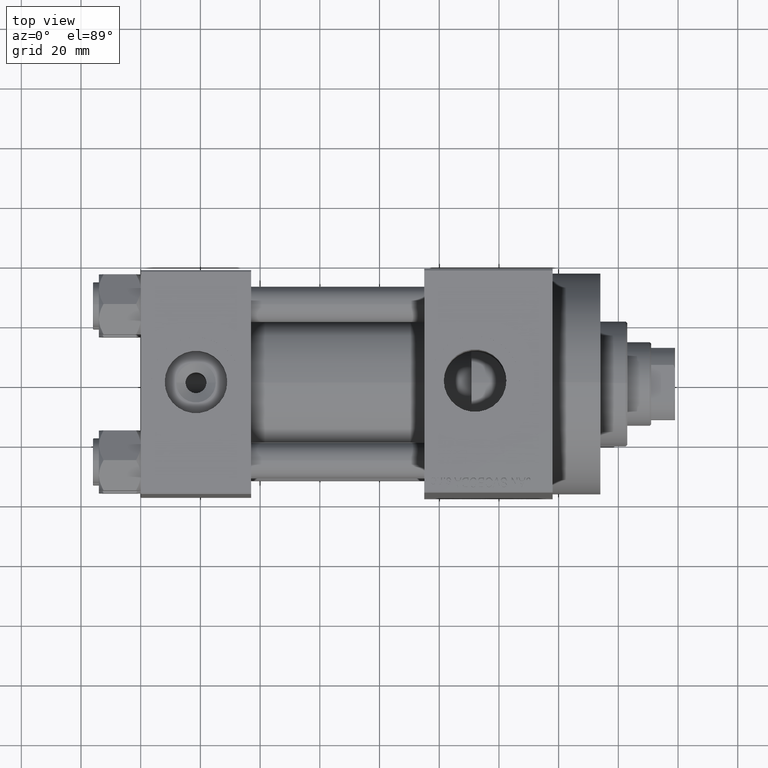
[diagram: clean part render]
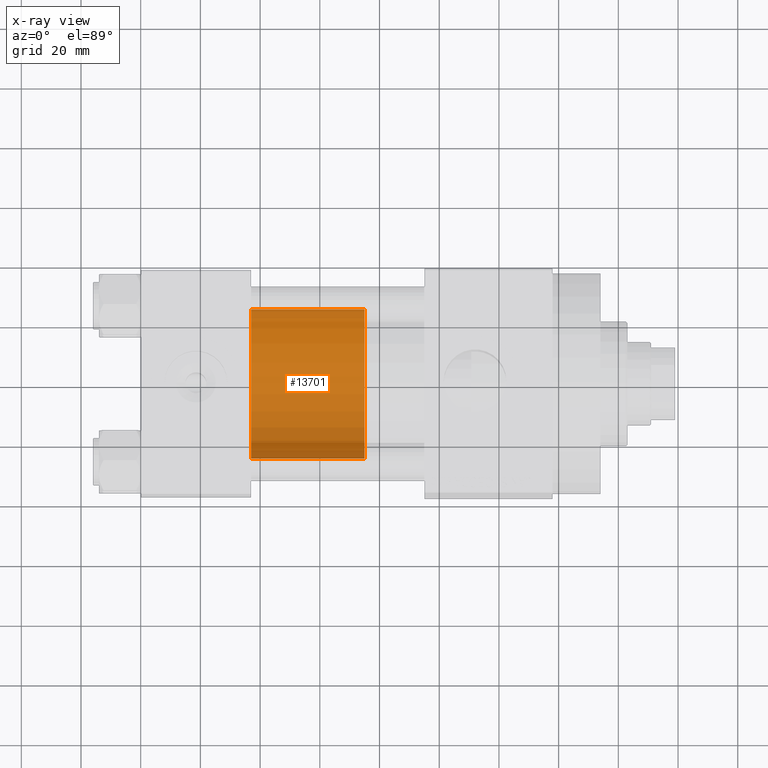
[diagram: x-ray — body ghosted, one internal face saturated and labeled with its STEP entity id]
A machine part, top view, then the same camera in x-ray: the body is ghosted and one INTERNAL B-rep face — a face not visible from any outside direction — is saturated and labeled: STEP entity #13701.
In plain terms, the highlighted cylindrical surface (partial cylindrical patch) has radius 25 mm, axis along (-1, 0, 0).
Its self-contained STEP definition (entity closure, byte-faithful):
#1112 = CARTESIAN_POINT ( 'NONE',  ( 0.000000000000000000, 0.000000000000000000, 38.00000000000000000 ) ) ;
#1924 = VERTEX_POINT ( 'NONE', #8918 ) ;
#5635 = DIRECTION ( 'NONE',  ( -0.000000000000000000, -0.000000000000000000, -1.000000000000000000 ) ) ;
#7929 = ORIENTED_EDGE ( 'NONE', *, *, #34699, .T. ) ;
#8110 = EDGE_CURVE ( 'NONE', #15899, #45849, #38335, .T. ) ;
#8918 = CARTESIAN_POINT ( 'NONE',  ( 25.00000000000000000, 3.061616997868383043E-15, 38.00000000000000000 ) ) ;
#9008 = AXIS2_PLACEMENT_3D ( 'NONE', #43640, #14538, #21465 ) ;
#9296 = CARTESIAN_POINT ( 'NONE',  ( 25.00000000000000000, 3.061616997868383043E-15, 38.00000000000000000 ) ) ;
#13701 = ADVANCED_FACE ( 'NONE', ( #15690 ), #37642, .T. ) ;
#14538 = DIRECTION ( 'NONE',  ( 0.000000000000000000, 0.000000000000000000, 1.000000000000000000 ) ) ;
#15539 = EDGE_CURVE ( 'NONE', #1924, #34387, #37715, .T. ) ;
#15690 = FACE_OUTER_BOUND ( 'NONE', #36863, .T. ) ;
#15899 = VERTEX_POINT ( 'NONE', #38996 ) ;
#15917 = DIRECTION ( 'NONE',  ( -1.000000000000000000, 0.000000000000000000, 0.000000000000000000 ) ) ;
#16151 = DIRECTION ( 'NONE',  ( -0.000000000000000000, -0.000000000000000000, -1.000000000000000000 ) ) ;
#16469 = CARTESIAN_POINT ( 'NONE',  ( 0.000000000000000000, 0.000000000000000000, 38.00000000000000000 ) ) ;
#21465 = DIRECTION ( 'NONE',  ( 1.000000000000000000, 0.000000000000000000, 0.000000000000000000 ) ) ;
#23287 = AXIS2_PLACEMENT_3D ( 'NONE', #16469, #45569, #23631 ) ;
#23631 = DIRECTION ( 'NONE',  ( 1.000000000000000000, 0.000000000000000000, 0.000000000000000000 ) ) ;
#26802 = ORIENTED_EDGE ( 'NONE', *, *, #29023, .F. ) ;
#29023 = EDGE_CURVE ( 'NONE', #1924, #15899, #46128, .T. ) ;
#29602 = CIRCLE ( 'NONE', #9008, 25.00000000000000000 ) ;
#34387 = VERTEX_POINT ( 'NONE', #38520 ) ;
#34699 = EDGE_CURVE ( 'NONE', #34387, #45849, #29602, .T. ) ;
#36863 = EDGE_LOOP ( 'NONE', ( #26802, #44839, #7929, #38403 ) ) ;
#36872 = VECTOR ( 'NONE', #38409, 1000.000000000000000 ) ;
#37642 = CYLINDRICAL_SURFACE ( 'NONE', #44408, 25.00000000000000000 ) ;
#37715 = LINE ( 'NONE', #9296, #36872 ) ;
#38335 = LINE ( 'NONE', #38568, #45868 ) ;
#38403 = ORIENTED_EDGE ( 'NONE', *, *, #8110, .F. ) ;
#38409 = DIRECTION ( 'NONE',  ( -0.000000000000000000, -0.000000000000000000, -1.000000000000000000 ) ) ;
#38520 = CARTESIAN_POINT ( 'NONE',  ( 25.00000000000000000, 3.061616997868383043E-15, 0.000000000000000000 ) ) ;
#38568 = CARTESIAN_POINT ( 'NONE',  ( -25.00000000000000000, 0.000000000000000000, 38.00000000000000000 ) ) ;
#38996 = CARTESIAN_POINT ( 'NONE',  ( -25.00000000000000000, 0.000000000000000000, 38.00000000000000000 ) ) ;
#43246 = CARTESIAN_POINT ( 'NONE',  ( -25.00000000000000000, 0.000000000000000000, 0.000000000000000000 ) ) ;
#43640 = CARTESIAN_POINT ( 'NONE',  ( 0.000000000000000000, 0.000000000000000000, 0.000000000000000000 ) ) ;
#44408 = AXIS2_PLACEMENT_3D ( 'NONE', #1112, #16151, #15917 ) ;
#44839 = ORIENTED_EDGE ( 'NONE', *, *, #15539, .T. ) ;
#45569 = DIRECTION ( 'NONE',  ( 0.000000000000000000, 0.000000000000000000, 1.000000000000000000 ) ) ;
#45849 = VERTEX_POINT ( 'NONE', #43246 ) ;
#45868 = VECTOR ( 'NONE', #5635, 1000.000000000000000 ) ;
#46128 = CIRCLE ( 'NONE', #23287, 25.00000000000000000 ) ;